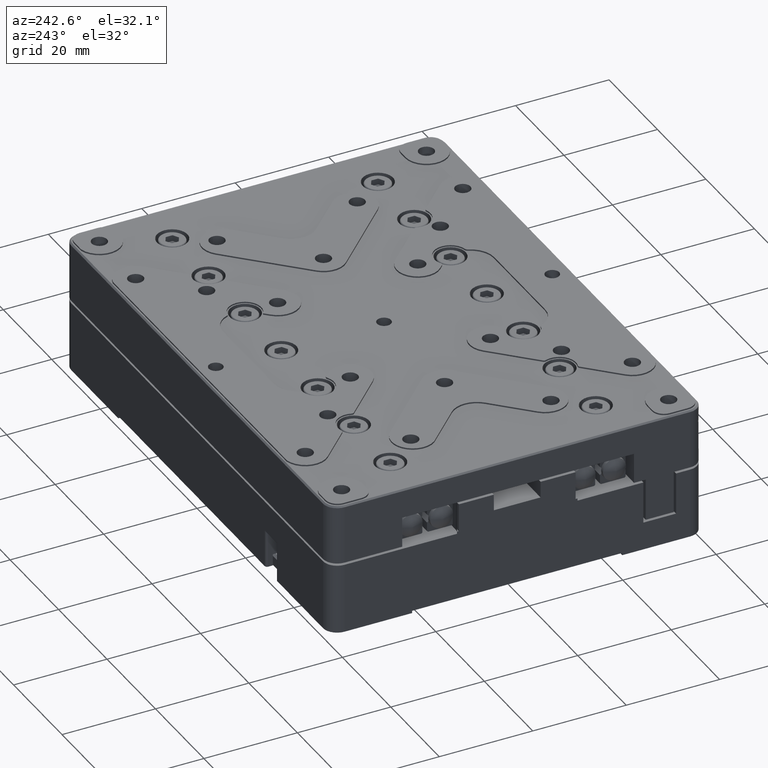
[diagram: clean part render]
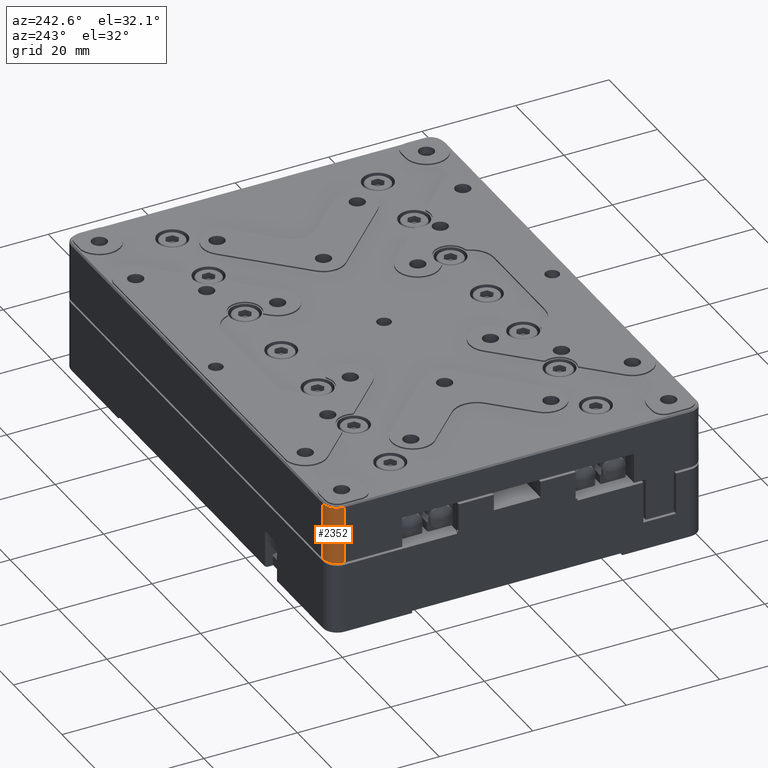
[diagram: same view with one face highlighted and labeled with its STEP entity id]
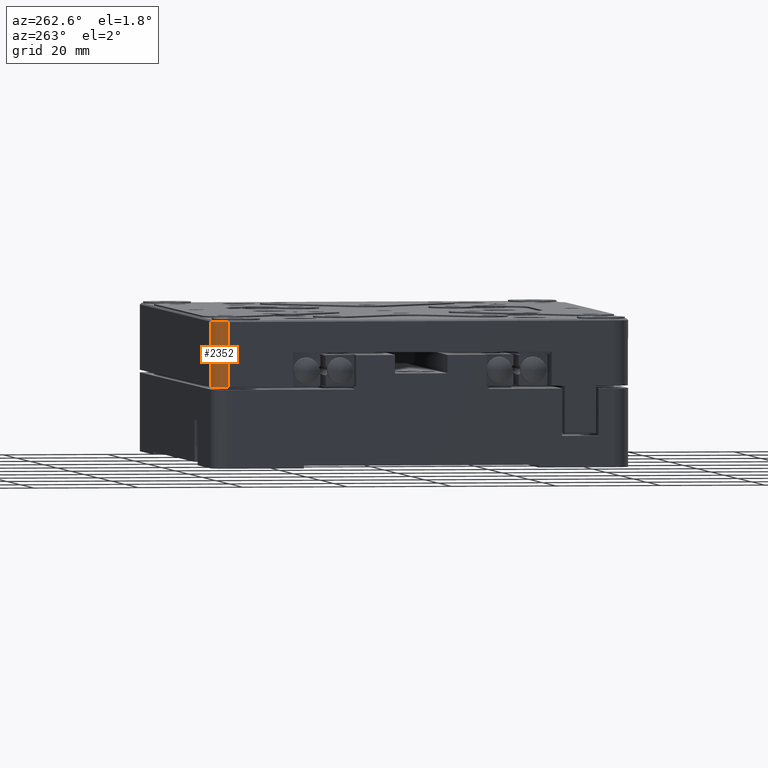
[diagram: same view with one face highlighted and labeled with its STEP entity id]
A machine part, auxiliary view. The second image highlights one B-rep face of the part: STEP entity #2352.
A second angle (auxiliary view) of the same face is appended — the face is thin or edge-on in the first view.
In plain terms, the highlighted cylindrical surface (edge-blend (fillet) strip) has radius 3 mm, axis along (0, 0, -1).
Its self-contained STEP definition (entity closure, byte-faithful):
#1153 = CYLINDRICAL_SURFACE ( 'NONE', #27907, 3.000000000000002665 ) ;
#1503 = DIRECTION ( 'NONE',  ( 0.000000000000000000, 0.000000000000000000, -1.000000000000000000 ) ) ;
#1558 = AXIS2_PLACEMENT_3D ( 'NONE', #31922, #15802, #10258 ) ;
#1804 = ORIENTED_EDGE ( 'NONE', *, *, #4893, .F. ) ;
#2339 = VERTEX_POINT ( 'NONE', #28729 ) ;
#2352 = ADVANCED_FACE ( 'NONE', ( #22996 ), #1153, .T. ) ;
#2654 = ORIENTED_EDGE ( 'NONE', *, *, #34485, .T. ) ;
#2828 = CARTESIAN_POINT ( 'NONE',  ( -54.99999999790499317, 36.99999998782499233, 12.90000000411390069 ) ) ;
#4893 = EDGE_CURVE ( 'NONE', #23218, #2339, #34105, .T. ) ;
#5020 = CIRCLE ( 'NONE', #27815, 3.000000000000002665 ) ;
#5675 = VERTEX_POINT ( 'NONE', #2828 ) ;
#6022 = VECTOR ( 'NONE', #10032, 1000.000000000000000 ) ;
#6273 = DIRECTION ( 'NONE',  ( -1.000000000000000000, 0.000000000000000000, 0.000000000000000000 ) ) ;
#6389 = ORIENTED_EDGE ( 'NONE', *, *, #17506, .F. ) ;
#6497 = CARTESIAN_POINT ( 'NONE',  ( -55.00000000000000000, 37.00000000000000000, 0.5000000000000000000 ) ) ;
#10032 = DIRECTION ( 'NONE',  ( 0.000000000000000000, 0.000000000000000000, 1.000000000000000000 ) ) ;
#10258 = DIRECTION ( 'NONE',  ( 0.000000000000000000, -1.000000000000000000, 0.000000000000000000 ) ) ;
#10976 = VERTEX_POINT ( 'NONE', #6497 ) ;
#11814 = CARTESIAN_POINT ( 'NONE',  ( -52.00000000000000000, 37.00000000000000000, 0.5000000000000000000 ) ) ;
#15802 = DIRECTION ( 'NONE',  ( 0.000000000000000000, 0.000000000000000000, 1.000000000000000000 ) ) ;
#17463 = DIRECTION ( 'NONE',  ( -1.000000000000000000, 0.000000000000000000, 0.000000000000000000 ) ) ;
#17506 = EDGE_CURVE ( 'NONE', #2339, #5675, #21537, .T. ) ;
#19106 = LINE ( 'NONE', #32532, #6022 ) ;
#20493 = CARTESIAN_POINT ( 'NONE',  ( -52.00000000000000000, 37.00000000000000000, 30.44679999999999964 ) ) ;
#21261 = VECTOR ( 'NONE', #25523, 1000.000000000000000 ) ;
#21537 = CIRCLE ( 'NONE', #1558, 2.999999995972300937 ) ;
#21931 = CARTESIAN_POINT ( 'NONE',  ( -52.00000000000000000, 40.00000000000000000, 0.5000000000000000000 ) ) ;
#22996 = FACE_OUTER_BOUND ( 'NONE', #24351, .T. ) ;
#23218 = VERTEX_POINT ( 'NONE', #21931 ) ;
#24351 = EDGE_LOOP ( 'NONE', ( #26621, #6389, #1804, #2654 ) ) ;
#25523 = DIRECTION ( 'NONE',  ( 0.000000000000000000, 0.000000000000000000, 1.000000000000000000 ) ) ;
#26621 = ORIENTED_EDGE ( 'NONE', *, *, #32022, .T. ) ;
#27815 = AXIS2_PLACEMENT_3D ( 'NONE', #11814, #30603, #6273 ) ;
#27907 = AXIS2_PLACEMENT_3D ( 'NONE', #20493, #1503, #17463 ) ;
#28729 = CARTESIAN_POINT ( 'NONE',  ( -51.99999998220250319, 39.99999999697809727, 12.90000000403193958 ) ) ;
#30603 = DIRECTION ( 'NONE',  ( 0.000000000000000000, 0.000000000000000000, 1.000000000000000000 ) ) ;
#31234 = CARTESIAN_POINT ( 'NONE',  ( -52.00000000000000000, 40.00000000000000000, 7.000000000000000000 ) ) ;
#31922 = CARTESIAN_POINT ( 'NONE',  ( -52.00000000000000000, 37.00000000000000000, 12.90000000403779978 ) ) ;
#32022 = EDGE_CURVE ( 'NONE', #10976, #5675, #19106, .T. ) ;
#32532 = CARTESIAN_POINT ( 'NONE',  ( -55.00000000000000000, 37.00000000000000000, 0.000000000000000000 ) ) ;
#34105 = LINE ( 'NONE', #31234, #21261 ) ;
#34485 = EDGE_CURVE ( 'NONE', #23218, #10976, #5020, .T. ) ;